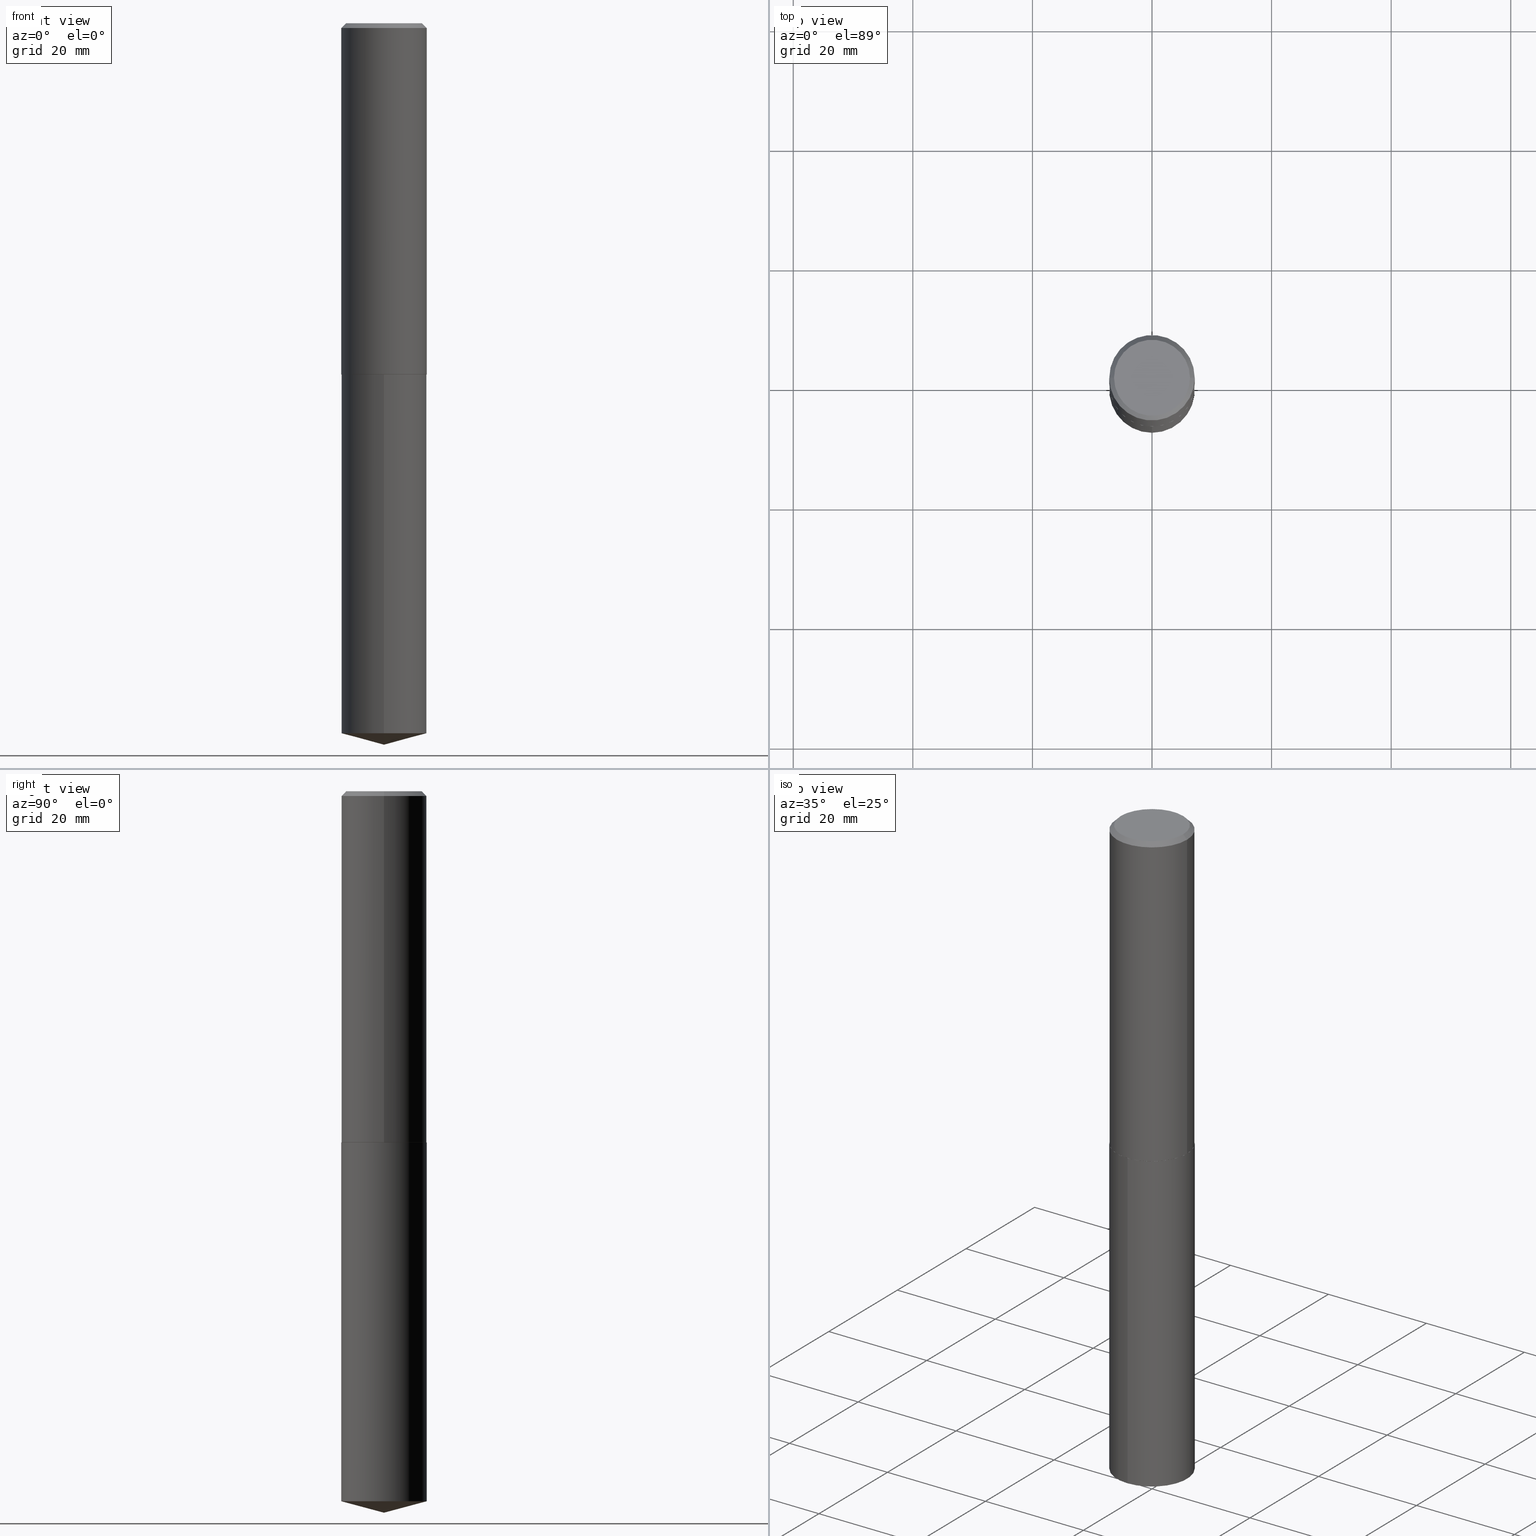
[diagram: canonical four-view strip — front | top / right | iso, engineering-drawing reading convention]
A machine part, canonical four-view strip (front | top / right | iso — engineering-drawing reading convention). The complete STEP part file that produces these views, byte-faithful:
ISO-10303-21;
HEADER;
FILE_DESCRIPTION (( 'STEP AP203' ),
    '1' );
FILE_NAME ('53136.STEP',
    '2024-04-22T19:19:22',
    ( '' ),
    ( '' ),
    'SwSTEP 2.0',
    'SolidWorks 2023',
    '' );
FILE_SCHEMA (( 'CONFIG_CONTROL_DESIGN' ));
ENDSEC;

DATA;
#1 = LINE ( 'NONE', #324, #167 ) ;
#2 = VERTEX_POINT ( 'NONE', #59 ) ;
#3 = CARTESIAN_POINT ( 'NONE',  ( 5.653923879900035579E-29, -8.072304855405352780E-15, -2.312000000000000277 ) ) ;
#4 = CIRCLE ( 'NONE', #105, 0.2812500000000000000 ) ;
#5 = AXIS2_PLACEMENT_3D ( 'NONE', #375, #348, #349 ) ;
#6 = CARTESIAN_POINT ( 'NONE',  ( 7.642090019328600035E-31, -1.091087918388489897E-16, -0.03125000000000020123 ) ) ;
#7 = SECURITY_CLASSIFICATION_LEVEL ( 'unclassified' ) ;
#8 = LINE ( 'NONE', #282, #169 ) ;
#9 = APPROVAL_ROLE ( '' ) ;
#10 = DIRECTION ( 'NONE',  ( -2.445468806185136877E-29, 3.491481338843145188E-15, 1.000000000000000000 ) ) ;
#11 = AXIS2_PLACEMENT_3D ( 'NONE', #369, #220, #183 ) ;
#12 = FACE_OUTER_BOUND ( 'NONE', #100, .T. ) ;
#13 = VERTEX_POINT ( 'NONE', #80 ) ;
#14 = DIRECTION ( 'NONE',  ( 1.000000000000000000, -6.982962677686265133E-15, 0.000000000000000000 ) ) ;
#15 = VERTEX_POINT ( 'NONE', #199 ) ;
#16 = EDGE_CURVE ( 'NONE', #2, #257, #1, .T. ) ;
#17 = APPROVAL_PERSON_ORGANIZATION ( #330, #310, #58 ) ;
#18 = ADVANCED_FACE ( 'NONE', ( #300 ), #251, .T. ) ;
#19 = EDGE_LOOP ( 'NONE', ( #147, #373, #289, #355 ) ) ;
#20 = VERTEX_POINT ( 'NONE', #357 ) ;
#21 = ORIENTED_EDGE ( 'NONE', *, *, #16, .F. ) ;
#22 = CARTESIAN_POINT ( 'NONE',  ( 5.655146614303128380E-29, -8.074050596074775072E-15, -2.312500000000000000 ) ) ;
#23 = ADVANCED_FACE ( 'NONE', ( #55 ), #182, .T. ) ;
#24 =( NAMED_UNIT ( * ) PLANE_ANGLE_UNIT ( ) SI_UNIT ( $, .RADIAN. ) );
#25 = EDGE_LOOP ( 'NONE', ( #152, #231 ) ) ;
#26 = ADVANCED_FACE ( 'NONE', ( #113 ), #303, .T. ) ;
#27 = LOCAL_TIME ( 15, 19, 22.00000000000000000, #249 ) ;
#28 = ORIENTED_EDGE ( 'NONE', *, *, #97, .T. ) ;
#29 = DIRECTION ( 'NONE',  ( -6.982962677686266711E-15, -1.000000000000000000, 3.885294924322507688E-15 ) ) ;
#30 = CARTESIAN_POINT ( 'NONE',  ( 5.655146614303128380E-29, -8.074050596074775072E-15, -2.312500000000000000 ) ) ;
#31 = AXIS2_PLACEMENT_3D ( 'NONE', #57, #302, #275 ) ;
#32 = APPROVAL_DATE_TIME ( #39, #48 ) ;
#33 = CC_DESIGN_PERSON_AND_ORGANIZATION_ASSIGNMENT ( #212, #304, ( #378 ) ) ;
#34 = DIRECTION ( 'NONE',  ( 2.445468806185136597E-29, -3.491481338843145583E-15, -1.000000000000000000 ) ) ;
#35 = COORDINATED_UNIVERSAL_TIME_OFFSET ( 5, 0, .BEHIND. ) ;
#36 = CARTESIAN_POINT ( 'NONE',  ( -3.511444677578687467E-47, 5.013412370314203908E-33, 1.435898372000272269E-18 ) ) ;
#37 = EDGE_CURVE ( 'NONE', #20, #319, #127, .T. ) ;
#38 = DIRECTION ( 'NONE',  ( -6.745023994389843077E-15, -0.9659258262890679791, 0.2588190451025215721 ) ) ;
#39 = DATE_AND_TIME ( #255, #353 ) ;
#40 = CIRCLE ( 'NONE', #267, 0.2812500000000000000 ) ;
#41 = CARTESIAN_POINT ( 'NONE',  ( -0.2812500000000003331, -6.073903411080069429E-15, -2.312000000000000277 ) ) ;
#42 = ORIENTED_EDGE ( 'NONE', *, *, #157, .F. ) ;
#43 = PERSON_AND_ORGANIZATION ( #125, #311 ) ;
#44 = DIRECTION ( 'NONE',  ( -2.445468806185136597E-29, 3.491481338843145583E-15, 1.000000000000000000 ) ) ;
#45 = EDGE_CURVE ( 'NONE', #236, #150, #4, .T. ) ;
#46 = CARTESIAN_POINT ( 'NONE',  ( -0.2807500000000002771, -6.076552638254179841E-15, -2.312500000000000000 ) ) ;
#47 = AXIS2_PLACEMENT_3D ( 'NONE', #178, #386, #111 ) ;
#48 = APPROVAL ( #190, 'UNSPECIFIED' ) ;
#49 = EDGE_LOOP ( 'NONE', ( #75, #107 ) ) ;
#50 = FACE_OUTER_BOUND ( 'NONE', #198, .T. ) ;
#51 = PRODUCT_DEFINITION_SHAPE ( 'NONE', 'NONE',  #378 ) ;
#52 = DIRECTION ( 'NONE',  ( -2.445468806185136877E-29, 3.491481338843145188E-15, 1.000000000000000000 ) ) ;
#53 = CONICAL_SURFACE ( 'NONE', #388, 146.9311341562565758, 1.308996938995749870 ) ;
#54 = DIRECTION ( 'NONE',  ( -1.000000000000000000, 6.982962677686265922E-15, -4.876176775795935793E-29 ) ) ;
#55 = FACE_OUTER_BOUND ( 'NONE', #79, .T. ) ;
#56 = ADVANCED_FACE ( 'NONE', ( #120 ), #201, .T. ) ;
#57 = CARTESIAN_POINT ( 'NONE',  ( 5.655146614303128380E-29, -8.074050596074775072E-15, -2.312500000000000000 ) ) ;
#58 = APPROVAL_ROLE ( '' ) ;
#59 = CARTESIAN_POINT ( 'NONE',  ( 0.2812500000000003331, -1.003626310850461766E-14, -2.312000000000000277 ) ) ;
#60 = PRODUCT_RELATED_PRODUCT_CATEGORY ( 'detail', '', ( #142 ) ) ;
#61 = VECTOR ( 'NONE', #372, 39.37007874015748143 ) ;
#62 = DIRECTION ( 'NONE',  ( 0.000000000000000000, 0.000000000000000000, 1.000000000000000000 ) ) ;
#63 = CARTESIAN_POINT ( 'NONE',  ( -0.2812500000000003331, -6.073903411080069429E-15, -2.312000000000000277 ) ) ;
#64 = CARTESIAN_POINT ( 'NONE',  ( 0.2812500000000003331, -1.003626310850461766E-14, -2.312000000000000277 ) ) ;
#65 = DIRECTION ( 'NONE',  ( 1.000000000000000000, -6.982962677686265133E-15, 0.000000000000000000 ) ) ;
#66 = CC_DESIGN_APPROVAL ( #310, ( #378 ) ) ;
#67 = DATE_AND_TIME ( #256, #77 ) ;
#68 = CARTESIAN_POINT ( 'NONE',  ( -0.2812500000000001665, 1.998401444325282956E-15, -1.383450494134193109E-29 ) ) ;
#69 = DIRECTION ( 'NONE',  ( -6.982962677686266711E-15, -1.000000000000000000, 3.885294924322507688E-15 ) ) ;
#70 = ADVANCED_FACE ( 'NONE', ( #361 ), #286, .F. ) ;
#71 = CYLINDRICAL_SURFACE ( 'NONE', #333, 0.2812500000000000000 ) ;
#72 = AXIS2_PLACEMENT_3D ( 'NONE', #185, #309, #155 ) ;
#73 = EDGE_CURVE ( 'NONE', #150, #13, #191, .T. ) ;
#74 = CYLINDRICAL_SURFACE ( 'NONE', #143, 0.2812500000000001665 ) ;
#75 = ORIENTED_EDGE ( 'NONE', *, *, #94, .T. ) ;
#76 = CARTESIAN_POINT ( 'NONE',  ( 0.2812500000000000000, -2.073067044938111613E-15, -0.03125000000000020123 ) ) ;
#77 = LOCAL_TIME ( 15, 19, 22.00000000000000000, #35 ) ;
#78 = ADVANCED_BREP_SHAPE_REPRESENTATION ( '53136', ( #389, #131, #83 ), #226 ) ;
#79 = EDGE_LOOP ( 'NONE', ( #144, #382, #296, #86 ) ) ;
#80 = CARTESIAN_POINT ( 'NONE',  ( 1.998401444325396158E-15, 0.2812499999999919509, -2.312500000000000888 ) ) ;
#81 = DIRECTION ( 'NONE',  ( -6.982962677686265922E-15, -1.000000000000000000, 3.510303681827602962E-15 ) ) ;
#82 = ORIENTED_EDGE ( 'NONE', *, *, #258, .T. ) ;
#83 = AXIS2_PLACEMENT_3D ( 'NONE', #243, #62, #307 ) ;
#84 = DIRECTION ( 'NONE',  ( -1.000000000000000000, 6.982962677686266711E-15, 0.000000000000000000 ) ) ;
#85 = CC_DESIGN_PERSON_AND_ORGANIZATION_ASSIGNMENT ( #43, #287, ( #96 ) ) ;
#86 = ORIENTED_EDGE ( 'NONE', *, *, #206, .F. ) ;
#87 = DIRECTION ( 'NONE',  ( -2.447055092570112405E-29, 3.489209686454046376E-15, 1.000000000000000000 ) ) ;
#88 = VECTOR ( 'NONE', #38, 39.37007874015748143 ) ;
#89 = LOCAL_TIME ( 15, 19, 22.00000000000000000, #153 ) ;
#90 = APPLICATION_PROTOCOL_DEFINITION ( 'international standard', 'config_control_design', 1994, #223 ) ;
#91 = CARTESIAN_POINT ( 'NONE',  ( 1.998401444325338176E-15, 0.2812499999999919509, -2.312500000000000888 ) ) ;
#92 = APPROVAL_STATUS ( 'not_yet_approved' ) ;
#93 = DIRECTION ( 'NONE',  ( 1.000000000000000000, -6.982962677686265133E-15, 0.000000000000000000 ) ) ;
#94 = EDGE_CURVE ( 'NONE', #15, #13, #161, .T. ) ;
#95 = LINE ( 'NONE', #68, #325 ) ;
#96 = PRODUCT_DEFINITION_FORMATION_WITH_SPECIFIED_SOURCE ( 'ANY', '', #142, .NOT_KNOWN. ) ;
#97 = EDGE_CURVE ( 'NONE', #150, #236, #280, .T. ) ;
#98 = DIRECTION ( 'NONE',  ( -2.445468806185136597E-29, 3.491481338843145583E-15, 1.000000000000000000 ) ) ;
#99 = DIRECTION ( 'NONE',  ( -2.438088387897960049E-29, 3.491481338843145188E-15, 1.000000000000000000 ) ) ;
#100 = EDGE_LOOP ( 'NONE', ( #351, #301, #203, #21 ) ) ;
#101 = DIRECTION ( 'NONE',  ( -2.445468806185136597E-29, 3.491481338843145583E-15, 1.000000000000000000 ) ) ;
#102 = ORIENTED_EDGE ( 'NONE', *, *, #140, .T. ) ;
#103 = DIRECTION ( 'NONE',  ( 1.000000000000000000, -6.982962677686266711E-15, 0.000000000000000000 ) ) ;
#104 = ORIENTED_EDGE ( 'NONE', *, *, #138, .T. ) ;
#105 = AXIS2_PLACEMENT_3D ( 'NONE', #312, #87, #69 ) ;
#106 = CIRCLE ( 'NONE', #318, 0.2500000000000000000 ) ;
#107 = ORIENTED_EDGE ( 'NONE', *, *, #109, .T. ) ;
#108 = ORIENTED_EDGE ( 'NONE', *, *, #109, .F. ) ;
#109 = EDGE_CURVE ( 'NONE', #13, #15, #40, .T. ) ;
#110 = DIRECTION ( 'NONE',  ( -6.982962677686266711E-15, -1.000000000000000000, 3.885294924322507688E-15 ) ) ;
#111 = DIRECTION ( 'NONE',  ( 1.000000000000000000, -6.982962677686265133E-15, 0.000000000000000000 ) ) ;
#112 = LOCAL_TIME ( 15, 19, 22.00000000000000000, #335 ) ;
#113 = FACE_OUTER_BOUND ( 'NONE', #133, .T. ) ;
#114 = CC_DESIGN_DATE_AND_TIME_ASSIGNMENT ( #67, #124, ( #253 ) ) ;
#115 = DIRECTION ( 'NONE',  ( -2.447055092570112405E-29, 3.489209686454046376E-15, 1.000000000000000000 ) ) ;
#116 = DIRECTION ( 'NONE',  ( -2.447055092570112405E-29, 3.489209686454046376E-15, 1.000000000000000000 ) ) ;
#117 = DIRECTION ( 'NONE',  ( -2.445468806185136597E-29, 3.491481338843145583E-15, 1.000000000000000000 ) ) ;
#118 = CIRCLE ( 'NONE', #187, 0.2807500000000002771 ) ;
#119 = APPLICATION_PROTOCOL_DEFINITION ( 'international standard', 'config_control_design', 1994, #254 ) ;
#120 = FACE_OUTER_BOUND ( 'NONE', #261, .T. ) ;
#121 = PERSON_AND_ORGANIZATION_ROLE ( 'design_supplier' ) ;
#122 = EDGE_CURVE ( 'NONE', #354, #236, #338, .T. ) ;
#123 = DIRECTION ( 'NONE',  ( 6.863315791527696626E-15, 0.9659258262890698665, 0.2588190451025147998 ) ) ;
#124 = DATE_TIME_ROLE ( 'classification_date' ) ;
#125 = PERSON ( 'UNSPECIFIED', 'UNSPECIFIED', 'UNSPECIFIED', ('UNSPECIFIED'), ('UNSPECIFIED'), ('UNSPECIFIED') ) ;
#126 = CARTESIAN_POINT ( 'NONE',  ( 1.143543159234910269E-28, -1.631604988620107915E-14, -4.674639289628747640 ) ) ;
#127 = CIRCLE ( 'NONE', #31, 0.2807500000000002771 ) ;
#128 = AXIS2_PLACEMENT_3D ( 'NONE', #3, #117, #93 ) ;
#129 = PERSON_AND_ORGANIZATION ( #125, #311 ) ;
#130 = DIRECTION ( 'NONE',  ( 1.000000000000000000, -6.982962677686266711E-15, 4.876176775795936353E-29 ) ) ;
#131 = MANIFOLD_SOLID_BREP ( 'Body-Move/Copy2[2]', #297 ) ;
#132 = DIRECTION ( 'NONE',  ( -2.445468806185136597E-29, 3.491481338843145583E-15, 1.000000000000000000 ) ) ;
#133 = EDGE_LOOP ( 'NONE', ( #171, #135, #294, #266 ) ) ;
#134 = CARTESIAN_POINT ( 'NONE',  ( 0.2500000000000000000, -1.876874176577487622E-15, 2.871796744013211380E-18 ) ) ;
#135 = ORIENTED_EDGE ( 'NONE', *, *, #145, .F. ) ;
#136 = CONICAL_SURFACE ( 'NONE', #218, 0.2812500000000003331, 0.7853981633975849475 ) ;
#137 = CARTESIAN_POINT ( 'NONE',  ( 0.000000000000000000, 0.000000000000000000, 0.000000000000000000 ) ) ;
#138 = EDGE_CURVE ( 'NONE', #319, #241, #246, .T. ) ;
#139 = VERTEX_POINT ( 'NONE', #160 ) ;
#140 = EDGE_CURVE ( 'NONE', #20, #2, #342, .T. ) ;
#141 = ORIENTED_EDGE ( 'NONE', *, *, #196, .T. ) ;
#142 = PRODUCT ( '53136', '53136', '', ( #184 ) ) ;
#143 = AXIS2_PLACEMENT_3D ( 'NONE', #299, #101, #130 ) ;
#144 = ORIENTED_EDGE ( 'NONE', *, *, #45, .T. ) ;
#145 = EDGE_CURVE ( 'NONE', #139, #381, #106, .T. ) ;
#146 =( LENGTH_UNIT ( ) NAMED_UNIT ( * ) SI_UNIT ( $, .METRE. ) );
#147 = ORIENTED_EDGE ( 'NONE', *, *, #221, .F. ) ;
#148 = VERTEX_POINT ( 'NONE', #242 ) ;
#149 =( NAMED_UNIT ( * ) SI_UNIT ( $, .STERADIAN. ) SOLID_ANGLE_UNIT ( ) );
#150 = VERTEX_POINT ( 'NONE', #340 ) ;
#151 = DATE_AND_TIME ( #337, #112 ) ;
#152 = ORIENTED_EDGE ( 'NONE', *, *, #145, .T. ) ;
#153 = COORDINATED_UNIVERSAL_TIME_OFFSET ( 5, 0, .BEHIND. ) ;
#154 = CARTESIAN_POINT ( 'NONE',  ( 5.653923879900035579E-29, -8.072304855405352780E-15, -2.312000000000000277 ) ) ;
#155 = DIRECTION ( 'NONE',  ( 1.000000000000000000, -6.982962677686266711E-15, 0.000000000000000000 ) ) ;
#156 = CIRCLE ( 'NONE', #72, 0.2812500000000000000 ) ;
#157 = EDGE_CURVE ( 'NONE', #2, #241, #245, .T. ) ;
#158 = DIRECTION ( 'NONE',  ( -6.982962677686266711E-15, -1.000000000000000000, 3.885294924322507688E-15 ) ) ;
#159 = DIRECTION ( 'NONE',  ( 2.438088387897960049E-29, -3.491481338843145188E-15, -1.000000000000000000 ) ) ;
#160 = CARTESIAN_POINT ( 'NONE',  ( -0.2500000000000000000, 1.800295065340990045E-15, 2.871796743988145016E-18 ) ) ;
#161 = CIRCLE ( 'NONE', #209, 0.2812500000000000000 ) ;
#162 = AXIS2_PLACEMENT_3D ( 'NONE', #137, #228, #320 ) ;
#163 = CARTESIAN_POINT ( 'NONE',  ( 5.655146614303128380E-29, -8.074050596074775072E-15, -2.312500000000000000 ) ) ;
#164 = CARTESIAN_POINT ( 'NONE',  ( 1.162351168970803357E-28, -1.657374601065671871E-14, -4.750000000000000000 ) ) ;
#165 = CC_DESIGN_PERSON_AND_ORGANIZATION_ASSIGNMENT ( #313, #121, ( #96 ) ) ;
#166 = CARTESIAN_POINT ( 'NONE',  ( -0.2812500000000000000, 1.854849461260413412E-15, -0.03125000000000020123 ) ) ;
#167 = VECTOR ( 'NONE', #52, 39.37007874015748143 ) ;
#168 = EDGE_CURVE ( 'NONE', #241, #2, #363, .T. ) ;
#169 = VECTOR ( 'NONE', #366, 39.37007874015748143 ) ;
#170 = ORIENTED_EDGE ( 'NONE', *, *, #37, .F. ) ;
#171 = ORIENTED_EDGE ( 'NONE', *, *, #258, .F. ) ;
#172 = CARTESIAN_POINT ( 'NONE',  ( 5.655146614303128380E-29, -8.074050596074775072E-15, -2.312500000000000000 ) ) ;
#173 = AXIS2_PLACEMENT_3D ( 'NONE', #239, #359, #84 ) ;
#174 = ORIENTED_EDGE ( 'NONE', *, *, #97, .F. ) ;
#175 = CARTESIAN_POINT ( 'NONE',  ( 0.2812500000000000000, -2.038623853712092353E-15, -0.03125000000000020123 ) ) ;
#176 = ORIENTED_EDGE ( 'NONE', *, *, #207, .F. ) ;
#177 =( CONVERSION_BASED_UNIT ( 'INCH', #240 ) LENGTH_UNIT ( ) NAMED_UNIT ( #244 ) );
#178 = CARTESIAN_POINT ( 'NONE',  ( 5.653923879900035579E-29, -8.072304855405352780E-15, -2.312000000000000277 ) ) ;
#179 = APPROVAL_DATE_TIME ( #362, #310 ) ;
#180 = AXIS2_PLACEMENT_3D ( 'NONE', #6, #34, #217 ) ;
#181 = CC_DESIGN_APPROVAL ( #48, ( #253 ) ) ;
#182 = CYLINDRICAL_SURFACE ( 'NONE', #285, 0.2812500000000000000 ) ;
#183 = DIRECTION ( 'NONE',  ( 6.982962677686265922E-15, 1.000000000000000000, -3.489209686454046771E-15 ) ) ;
#184 = MECHANICAL_CONTEXT ( 'NONE', #254, 'mechanical' ) ;
#185 = CARTESIAN_POINT ( 'NONE',  ( 7.642090019328600035E-31, -1.091087918388489897E-16, -0.03125000000000020123 ) ) ;
#186 = CARTESIAN_POINT ( 'NONE',  ( 1.162357602280653445E-28, -1.657374601065671871E-14, -4.750000000000000000 ) ) ;
#187 = AXIS2_PLACEMENT_3D ( 'NONE', #364, #336, #284 ) ;
#188 = CALENDAR_DATE ( 2024, 22, 4 ) ;
#189 = FACE_OUTER_BOUND ( 'NONE', #25, .T. ) ;
#190 = APPROVAL_STATUS ( 'not_yet_approved' ) ;
#191 = LINE ( 'NONE', #91, #232 ) ;
#192 = PLANE ( 'NONE',  #263 ) ;
#193 = CLOSED_SHELL ( 'NONE', ( #23, #390, #298, #238, #70 ) ) ;
#194 = CARTESIAN_POINT ( 'NONE',  ( 5.653923879900035579E-29, -8.072304855405352780E-15, -2.312000000000000277 ) ) ;
#195 = DIRECTION ( 'NONE',  ( 1.000000000000000000, -6.982962677686266711E-15, 4.876242311950517246E-29 ) ) ;
#196 = EDGE_CURVE ( 'NONE', #319, #20, #118, .T. ) ;
#197 = CC_DESIGN_APPROVAL ( #292, ( #96 ) ) ;
#198 = EDGE_LOOP ( 'NONE', ( #346, #28, #360, #108 ) ) ;
#199 = CARTESIAN_POINT ( 'NONE',  ( -1.963958253099205714E-15, -0.2812500000000080491, -2.312499999999999112 ) ) ;
#200 = LINE ( 'NONE', #175, #274 ) ;
#201 = CONICAL_SURFACE ( 'NONE', #180, 0.2812500000000000000, 0.7853981633974452814 ) ;
#202 = VECTOR ( 'NONE', #252, 39.37007874015748143 ) ;
#203 = ORIENTED_EDGE ( 'NONE', *, *, #204, .F. ) ;
#204 = EDGE_CURVE ( 'NONE', #257, #148, #156, .T. ) ;
#205 = ORIENTED_EDGE ( 'NONE', *, *, #122, .T. ) ;
#206 = EDGE_CURVE ( 'NONE', #236, #15, #8, .T. ) ;
#207 = EDGE_CURVE ( 'NONE', #354, #150, #215, .T. ) ;
#208 = EDGE_LOOP ( 'NONE', ( #176, #205, #174 ) ) ;
#209 = AXIS2_PLACEMENT_3D ( 'NONE', #30, #248, #158 ) ;
#210 = CC_DESIGN_SECURITY_CLASSIFICATION ( #253, ( #96 ) ) ;
#211 = CARTESIAN_POINT ( 'NONE',  ( 5.655146614303128380E-29, -8.074050596074775072E-15, -2.312500000000000000 ) ) ;
#212 = PERSON_AND_ORGANIZATION ( #125, #311 ) ;
#213 = DIRECTION ( 'NONE',  ( -0.7071067811866441621, 7.493145998870704414E-15, 0.7071067811864508723 ) ) ;
#214 = CALENDAR_DATE ( 2024, 22, 4 ) ;
#215 = LINE ( 'NONE', #186, #345 ) ;
#216 = COORDINATED_UNIVERSAL_TIME_OFFSET ( 5, 0, .BEHIND. ) ;
#217 = DIRECTION ( 'NONE',  ( -1.000000000000000000, 6.982962677686266711E-15, 0.000000000000000000 ) ) ;
#218 = AXIS2_PLACEMENT_3D ( 'NONE', #194, #44, #14 ) ;
#219 = APPROVAL_DATE_TIME ( #227, #292 ) ;
#220 = DIRECTION ( 'NONE',  ( 2.447055092570111564E-29, -3.489209686454046771E-15, -1.000000000000000000 ) ) ;
#221 = EDGE_CURVE ( 'NONE', #241, #148, #95, .T. ) ;
#222 = FACE_OUTER_BOUND ( 'NONE', #270, .T. ) ;
#223 = APPLICATION_CONTEXT ( 'configuration controlled 3d designs of mechanical parts and assemblies' ) ;
#224 = CARTESIAN_POINT ( 'NONE',  ( -1.963958253099148128E-15, -0.2812500000000163203, -4.674639289628746752 ) ) ;
#225 = CC_DESIGN_PERSON_AND_ORGANIZATION_ASSIGNMENT ( #279, #247, ( #142 ) ) ;
#226 =( GEOMETRIC_REPRESENTATION_CONTEXT ( 3 ) GLOBAL_UNCERTAINTY_ASSIGNED_CONTEXT ( ( #377 ) ) GLOBAL_UNIT_ASSIGNED_CONTEXT ( ( #177, #24, #149 ) ) REPRESENTATION_CONTEXT ( 'NONE', 'WORKASPACE' ) );
#227 = DATE_AND_TIME ( #188, #27 ) ;
#228 = DIRECTION ( 'NONE',  ( -2.445468806185136597E-29, 3.491481338843145583E-15, 1.000000000000000000 ) ) ;
#229 = ADVANCED_FACE ( 'NONE', ( #189 ), #314, .F. ) ;
#230 = CARTESIAN_POINT ( 'NONE',  ( -8.472090827354589667E-28, 1.207914608898095021E-13, 34.62007874015748143 ) ) ;
#231 = ORIENTED_EDGE ( 'NONE', *, *, #295, .T. ) ;
#232 = VECTOR ( 'NONE', #308, 39.37007874015748143 ) ;
#233 = CIRCLE ( 'NONE', #322, 0.2500000000000000000 ) ;
#234 = ORIENTED_EDGE ( 'NONE', *, *, #37, .T. ) ;
#235 = EDGE_LOOP ( 'NONE', ( #321, #141, #102, #384 ) ) ;
#236 = VERTEX_POINT ( 'NONE', #224 ) ;
#237 = CC_DESIGN_DATE_AND_TIME_ASSIGNMENT ( #151, #276, ( #378 ) ) ;
#238 = ADVANCED_FACE ( 'NONE', ( #50 ), #71, .T. ) ;
#239 = CARTESIAN_POINT ( 'NONE',  ( 7.642090019328600035E-31, -1.091087918388489897E-16, -0.03125000000000020123 ) ) ;
#240 = LENGTH_MEASURE_WITH_UNIT ( LENGTH_MEASURE( 0.02539999999999999897 ), #146 );
#241 = VERTEX_POINT ( 'NONE', #41 ) ;
#242 = CARTESIAN_POINT ( 'NONE',  ( -0.2812500000000000000, -2.092305379296817195E-15, -0.03125000000000020123 ) ) ;
#243 = CARTESIAN_POINT ( 'NONE',  ( 0.000000000000000000, 0.000000000000000000, 0.000000000000000000 ) ) ;
#244 = DIMENSIONAL_EXPONENTS ( 1.000000000000000000, 0.000000000000000000, 0.000000000000000000, 0.000000000000000000, 0.000000000000000000, 0.000000000000000000, 0.000000000000000000 ) ;
#245 = CIRCLE ( 'NONE', #293, 0.2812500000000003331 ) ;
#246 = LINE ( 'NONE', #63, #339 ) ;
#247 = PERSON_AND_ORGANIZATION_ROLE ( 'design_owner' ) ;
#248 = DIRECTION ( 'NONE',  ( -2.447055092570112405E-29, 3.489209686454046376E-15, 1.000000000000000000 ) ) ;
#249 = COORDINATED_UNIVERSAL_TIME_OFFSET ( 5, 0, .BEHIND. ) ;
#250 = DIRECTION ( 'NONE',  ( -6.982962677686266711E-15, -1.000000000000000000, 3.885294924322507688E-15 ) ) ;
#251 = CONICAL_SURFACE ( 'NONE', #47, 0.2812500000000003331, 0.7853981633975849475 ) ;
#252 = DIRECTION ( 'NONE',  ( 0.7071067811866441621, -2.468850131083269169E-15, 0.7071067811864508723 ) ) ;
#253 = SECURITY_CLASSIFICATION ( '', '', #7 ) ;
#254 = APPLICATION_CONTEXT ( 'configuration controlled 3d designs of mechanical parts and assemblies' ) ;
#255 = CALENDAR_DATE ( 2024, 22, 4 ) ;
#256 = CALENDAR_DATE ( 2024, 22, 4 ) ;
#257 = VERTEX_POINT ( 'NONE', #76 ) ;
#258 = EDGE_CURVE ( 'NONE', #381, #257, #200, .T. ) ;
#259 = SHAPE_DEFINITION_REPRESENTATION ( #51, #78 ) ;
#260 = FACE_OUTER_BOUND ( 'NONE', #268, .T. ) ;
#261 = EDGE_LOOP ( 'NONE', ( #323, #82, #331, #272 ) ) ;
#262 = AXIS2_PLACEMENT_3D ( 'NONE', #126, #116, #29 ) ;
#263 = AXIS2_PLACEMENT_3D ( 'NONE', #172, #99, #264 ) ;
#264 = DIRECTION ( 'NONE',  ( 1.000000000000000000, -6.982962677686265922E-15, 4.876176775795935793E-29 ) ) ;
#265 = DESIGN_CONTEXT ( 'detailed design', #223, 'design' ) ;
#266 = ORIENTED_EDGE ( 'NONE', *, *, #365, .T. ) ;
#267 = AXIS2_PLACEMENT_3D ( 'NONE', #211, #315, #250 ) ;
#268 = EDGE_LOOP ( 'NONE', ( #379, #327, #343 ) ) ;
#269 = FACE_OUTER_BOUND ( 'NONE', #387, .T. ) ;
#270 = EDGE_LOOP ( 'NONE', ( #234, #104, #42, #277 ) ) ;
#271 = ADVANCED_FACE ( 'NONE', ( #269 ), #192, .F. ) ;
#272 = ORIENTED_EDGE ( 'NONE', *, *, #350, .F. ) ;
#273 = ADVANCED_FACE ( 'NONE', ( #344 ), #385, .T. ) ;
#274 = VECTOR ( 'NONE', #288, 39.37007874015748143 ) ;
#275 = DIRECTION ( 'NONE',  ( 1.000000000000000000, -6.982962677686264344E-15, 0.000000000000000000 ) ) ;
#276 = DATE_TIME_ROLE ( 'creation_date' ) ;
#277 = ORIENTED_EDGE ( 'NONE', *, *, #140, .F. ) ;
#278 = DIRECTION ( 'NONE',  ( -2.445468806185136597E-29, 3.491481338843145583E-15, 1.000000000000000000 ) ) ;
#279 = PERSON_AND_ORGANIZATION ( #125, #311 ) ;
#280 = CIRCLE ( 'NONE', #262, 0.2812500000000000000 ) ;
#281 = AXIS2_PLACEMENT_3D ( 'NONE', #291, #290, #103 ) ;
#282 = CARTESIAN_POINT ( 'NONE',  ( -1.963958253099205714E-15, -0.2812500000000080491, -2.312499999999999112 ) ) ;
#283 = DIRECTION ( 'NONE',  ( 1.000000000000000000, -6.982962677686266711E-15, 4.876242311950517246E-29 ) ) ;
#284 = DIRECTION ( 'NONE',  ( 1.000000000000000000, -6.982962677686264344E-15, 0.000000000000000000 ) ) ;
#285 = AXIS2_PLACEMENT_3D ( 'NONE', #22, #115, #306 ) ;
#286 = PLANE ( 'NONE',  #11 ) ;
#287 = PERSON_AND_ORGANIZATION_ROLE ( 'creator' ) ;
#288 = DIRECTION ( 'NONE',  ( 0.7071067811865453523, -7.319954787623248157E-15, -0.7071067811865496822 ) ) ;
#289 = ORIENTED_EDGE ( 'NONE', *, *, #16, .T. ) ;
#290 = DIRECTION ( 'NONE',  ( -2.445468806185136597E-29, 3.491481338843145583E-15, 1.000000000000000000 ) ) ;
#291 = CARTESIAN_POINT ( 'NONE',  ( 7.642090019328600035E-31, -1.091087918388489897E-16, -0.03125000000000020123 ) ) ;
#292 = APPROVAL ( #370, 'UNSPECIFIED' ) ;
#293 = AXIS2_PLACEMENT_3D ( 'NONE', #154, #278, #65 ) ;
#294 = ORIENTED_EDGE ( 'NONE', *, *, #350, .T. ) ;
#295 = EDGE_CURVE ( 'NONE', #381, #139, #233, .T. ) ;
#296 = ORIENTED_EDGE ( 'NONE', *, *, #94, .F. ) ;
#297 = CLOSED_SHELL ( 'NONE', ( #56, #332, #352, #271, #18, #273, #26, #229 ) ) ;
#298 = ADVANCED_FACE ( 'NONE', ( #326 ), #53, .T. ) ;
#299 = CARTESIAN_POINT ( 'NONE',  ( 0.000000000000000000, 0.000000000000000000, 0.000000000000000000 ) ) ;
#300 = FACE_OUTER_BOUND ( 'NONE', #235, .T. ) ;
#301 = ORIENTED_EDGE ( 'NONE', *, *, #221, .T. ) ;
#302 = DIRECTION ( 'NONE',  ( -2.445468806185136597E-29, 3.491481338843145583E-15, 1.000000000000000000 ) ) ;
#303 = CONICAL_SURFACE ( 'NONE', #173, 0.2812500000000000000, 0.7853981633974452814 ) ;
#304 = PERSON_AND_ORGANIZATION_ROLE ( 'creator' ) ;
#305 = APPROVAL_PERSON_ORGANIZATION ( #341, #48, #9 ) ;
#306 = DIRECTION ( 'NONE',  ( -6.982962677686266711E-15, -1.000000000000000000, 3.885294924322507688E-15 ) ) ;
#307 = DIRECTION ( 'NONE',  ( 1.000000000000000000, 0.000000000000000000, 0.000000000000000000 ) ) ;
#308 = DIRECTION ( 'NONE',  ( -2.447055092570112405E-29, 3.489209686454046771E-15, 1.000000000000000000 ) ) ;
#309 = DIRECTION ( 'NONE',  ( -2.445468806185136597E-29, 3.491481338843145583E-15, 1.000000000000000000 ) ) ;
#310 = APPROVAL ( #92, 'UNSPECIFIED' ) ;
#311 = ORGANIZATION ( 'UNSPECIFIED', 'UNSPECIFIED', '' ) ;
#312 = CARTESIAN_POINT ( 'NONE',  ( 1.143543159234910269E-28, -1.631604988620107915E-14, -4.674639289628747640 ) ) ;
#313 = PERSON_AND_ORGANIZATION ( #125, #311 ) ;
#314 = PLANE ( 'NONE',  #358 ) ;
#315 = DIRECTION ( 'NONE',  ( -2.447055092570112405E-29, 3.489209686454046376E-15, 1.000000000000000000 ) ) ;
#316 = APPROVAL_ROLE ( '' ) ;
#317 = CARTESIAN_POINT ( 'NONE',  ( -7.022889355157374934E-47, 1.002682474062840782E-32, 2.871796744000544539E-18 ) ) ;
#318 = AXIS2_PLACEMENT_3D ( 'NONE', #334, #98, #283 ) ;
#319 = VERTEX_POINT ( 'NONE', #46 ) ;
#320 = DIRECTION ( 'NONE',  ( 1.000000000000000000, -6.982962677686266711E-15, 4.876176775795936353E-29 ) ) ;
#321 = ORIENTED_EDGE ( 'NONE', *, *, #138, .F. ) ;
#322 = AXIS2_PLACEMENT_3D ( 'NONE', #317, #132, #195 ) ;
#323 = ORIENTED_EDGE ( 'NONE', *, *, #295, .F. ) ;
#324 = CARTESIAN_POINT ( 'NONE',  ( 0.2812500000000001665, -1.963958253099263696E-15, 1.371424718192607853E-29 ) ) ;
#325 = VECTOR ( 'NONE', #10, 39.37007874015748143 ) ;
#326 = FACE_OUTER_BOUND ( 'NONE', #208, .T. ) ;
#327 = ORIENTED_EDGE ( 'NONE', *, *, #207, .T. ) ;
#328 = CC_DESIGN_PERSON_AND_ORGANIZATION_ASSIGNMENT ( #347, #374, ( #253 ) ) ;
#329 = ORIENTED_EDGE ( 'NONE', *, *, #196, .F. ) ;
#330 = PERSON_AND_ORGANIZATION ( #125, #311 ) ;
#331 = ORIENTED_EDGE ( 'NONE', *, *, #204, .T. ) ;
#332 = ADVANCED_FACE ( 'NONE', ( #12 ), #74, .T. ) ;
#333 = AXIS2_PLACEMENT_3D ( 'NONE', #163, #371, #110 ) ;
#334 = CARTESIAN_POINT ( 'NONE',  ( -7.022889355157374934E-47, 1.002682474062840782E-32, 2.871796744000544539E-18 ) ) ;
#335 = COORDINATED_UNIVERSAL_TIME_OFFSET ( 5, 0, .BEHIND. ) ;
#336 = DIRECTION ( 'NONE',  ( -2.445468806185136597E-29, 3.491481338843145583E-15, 1.000000000000000000 ) ) ;
#337 = CALENDAR_DATE ( 2024, 22, 4 ) ;
#338 = LINE ( 'NONE', #367, #88 ) ;
#339 = VECTOR ( 'NONE', #213, 39.37007874015748143 ) ;
#340 = CARTESIAN_POINT ( 'NONE',  ( 1.998401444325395763E-15, 0.2812499999999836242, -4.674639289628748529 ) ) ;
#341 = PERSON_AND_ORGANIZATION ( #125, #311 ) ;
#342 = LINE ( 'NONE', #64, #202 ) ;
#343 = ORIENTED_EDGE ( 'NONE', *, *, #45, .F. ) ;
#344 = FACE_OUTER_BOUND ( 'NONE', #19, .T. ) ;
#345 = VECTOR ( 'NONE', #123, 39.37007874015748143 ) ;
#346 = ORIENTED_EDGE ( 'NONE', *, *, #73, .F. ) ;
#347 = PERSON_AND_ORGANIZATION ( #125, #311 ) ;
#348 = DIRECTION ( 'NONE',  ( -2.447055092570112405E-29, 3.489209686454046376E-15, 1.000000000000000000 ) ) ;
#349 = DIRECTION ( 'NONE',  ( -6.982962677686265922E-15, -1.000000000000000000, 3.510303681827602962E-15 ) ) ;
#350 = EDGE_CURVE ( 'NONE', #139, #148, #356, .T. ) ;
#351 = ORIENTED_EDGE ( 'NONE', *, *, #157, .T. ) ;
#352 = ADVANCED_FACE ( 'NONE', ( #222 ), #136, .T. ) ;
#353 = LOCAL_TIME ( 15, 19, 22.00000000000000000, #216 ) ;
#354 = VERTEX_POINT ( 'NONE', #164 ) ;
#355 = ORIENTED_EDGE ( 'NONE', *, *, #365, .F. ) ;
#356 = LINE ( 'NONE', #166, #61 ) ;
#357 = CARTESIAN_POINT ( 'NONE',  ( 0.2807500000000002771, -1.003451736783519537E-14, -2.312500000000000000 ) ) ;
#358 = AXIS2_PLACEMENT_3D ( 'NONE', #36, #159, #54 ) ;
#359 = DIRECTION ( 'NONE',  ( 2.445468806185136597E-29, -3.491481338843145583E-15, -1.000000000000000000 ) ) ;
#360 = ORIENTED_EDGE ( 'NONE', *, *, #206, .T. ) ;
#361 = FACE_OUTER_BOUND ( 'NONE', #49, .T. ) ;
#362 = DATE_AND_TIME ( #214, #89 ) ;
#363 = CIRCLE ( 'NONE', #128, 0.2812500000000003331 ) ;
#364 = CARTESIAN_POINT ( 'NONE',  ( 5.655146614303128380E-29, -8.074050596074775072E-15, -2.312500000000000000 ) ) ;
#365 = EDGE_CURVE ( 'NONE', #148, #257, #376, .T. ) ;
#366 = DIRECTION ( 'NONE',  ( -2.447055092570112405E-29, 3.489209686454046771E-15, 1.000000000000000000 ) ) ;
#367 = CARTESIAN_POINT ( 'NONE',  ( 1.161617511517752057E-28, -1.658425240295630200E-14, -4.750000000000000000 ) ) ;
#368 = APPROVAL_PERSON_ORGANIZATION ( #129, #292, #316 ) ;
#369 = CARTESIAN_POINT ( 'NONE',  ( 5.655146614303128380E-29, -8.074050596074775072E-15, -2.312500000000000000 ) ) ;
#370 = APPROVAL_STATUS ( 'not_yet_approved' ) ;
#371 = DIRECTION ( 'NONE',  ( -2.447055092570112405E-29, 3.489209686454046376E-15, 1.000000000000000000 ) ) ;
#372 = DIRECTION ( 'NONE',  ( -0.7071067811865453523, 2.468850131082234184E-15, -0.7071067811865496822 ) ) ;
#373 = ORIENTED_EDGE ( 'NONE', *, *, #168, .T. ) ;
#374 = PERSON_AND_ORGANIZATION_ROLE ( 'classification_officer' ) ;
#375 = CARTESIAN_POINT ( 'NONE',  ( -8.472090827354589667E-28, 1.207914608898095021E-13, 34.62007874015748143 ) ) ;
#376 = CIRCLE ( 'NONE', #281, 0.2812500000000000000 ) ;
#377 = UNCERTAINTY_MEASURE_WITH_UNIT (LENGTH_MEASURE( 1.000000000000000082E-05 ), #177, 'distance_accuracy_value', 'NONE');
#378 = PRODUCT_DEFINITION ( 'UNKNOWN', '', #96, #265 ) ;
#379 = ORIENTED_EDGE ( 'NONE', *, *, #122, .F. ) ;
#380 = DIRECTION ( 'NONE',  ( -2.447055092570112405E-29, 3.489209686454046376E-15, 1.000000000000000000 ) ) ;
#381 = VERTEX_POINT ( 'NONE', #134 ) ;
#382 = ORIENTED_EDGE ( 'NONE', *, *, #73, .T. ) ;
#383 = CONICAL_SURFACE ( 'NONE', #5, 146.9311341562565758, 1.308996938995749870 ) ;
#384 = ORIENTED_EDGE ( 'NONE', *, *, #168, .F. ) ;
#385 = CYLINDRICAL_SURFACE ( 'NONE', #162, 0.2812500000000001665 ) ;
#386 = DIRECTION ( 'NONE',  ( -2.445468806185136597E-29, 3.491481338843145583E-15, 1.000000000000000000 ) ) ;
#387 = EDGE_LOOP ( 'NONE', ( #170, #329 ) ) ;
#388 = AXIS2_PLACEMENT_3D ( 'NONE', #230, #380, #81 ) ;
#389 = MANIFOLD_SOLID_BREP ( 'Body-Move/Copy2[1]', #193 ) ;
#390 = ADVANCED_FACE ( 'NONE', ( #260 ), #383, .T. ) ;
ENDSEC;
END-ISO-10303-21;
